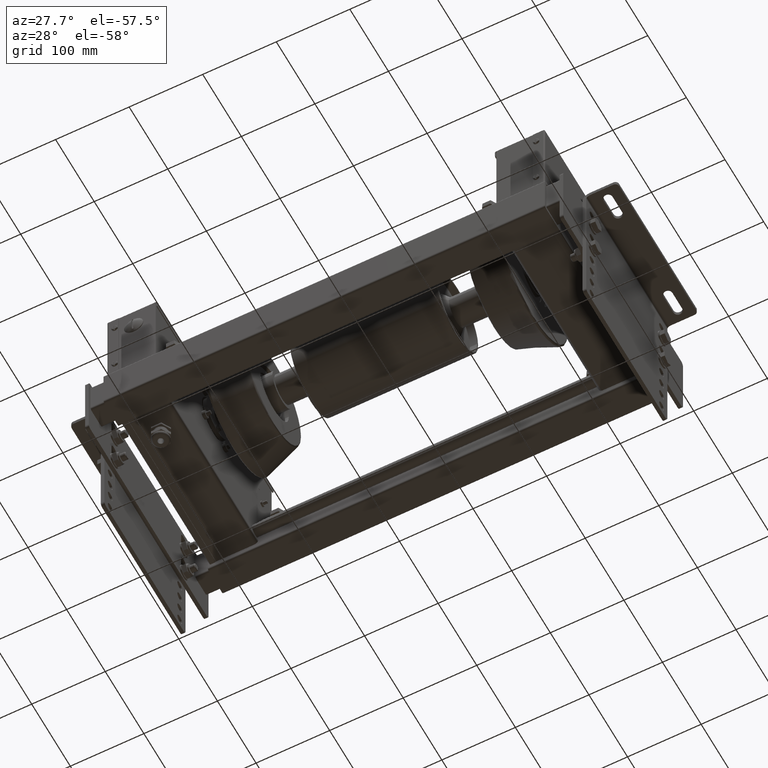
[diagram: clean part render]
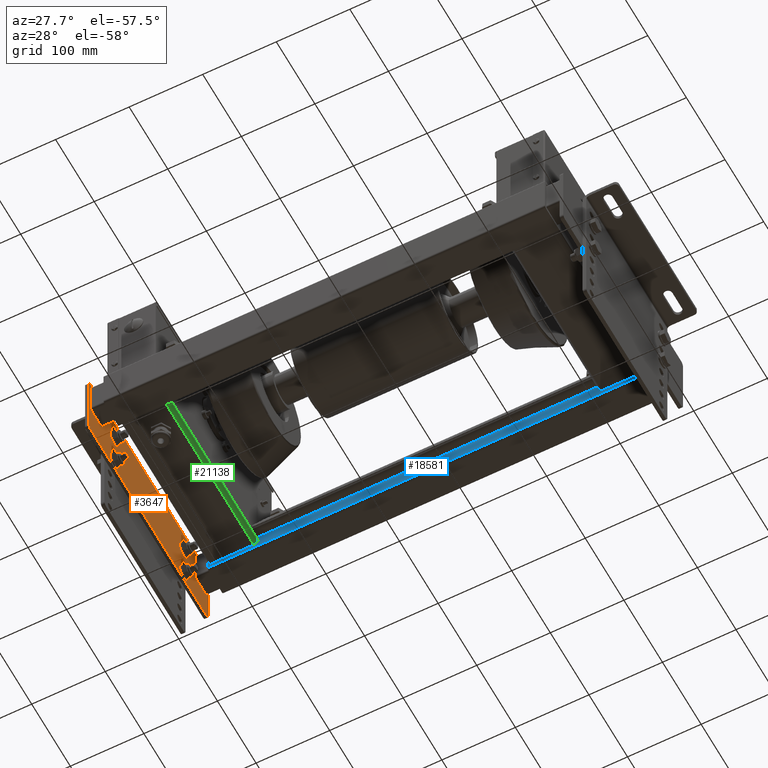
[diagram: same view with three faces highlighted in distinct colors, each labeled with its STEP entity id]
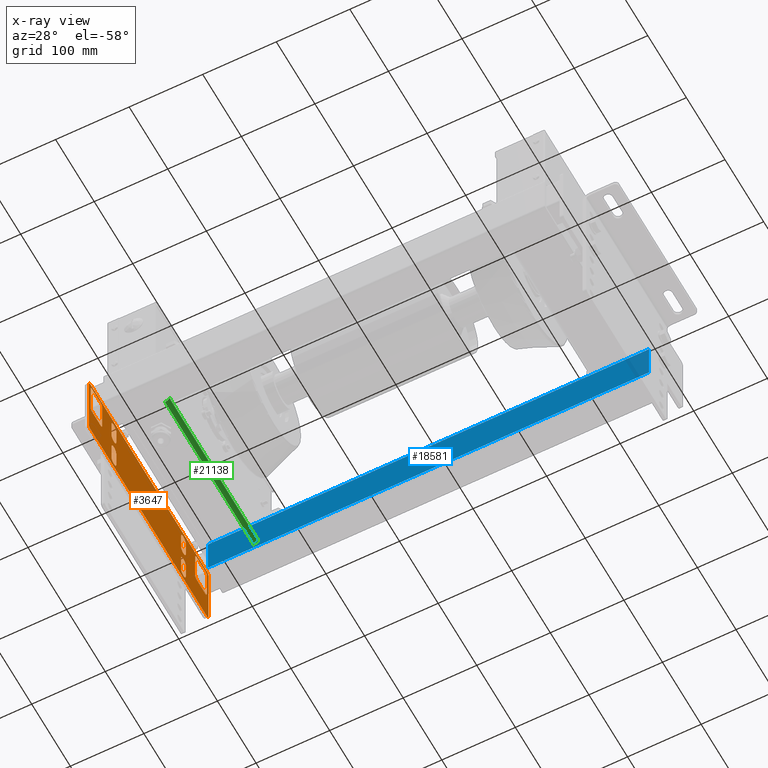
[diagram: x-ray of the same camera — body ghosted, the three highlighted faces saturated]
A machine part, auxiliary view with three faces highlighted in distinct colors.
The next image is the same camera in x-ray (body ghosted, the three faces saturated) — at least one of them is partly hidden behind the body in this view.
Their STEP definitions:

[orange] entity #3647 — the highlighted planar face has unit normal (-1, 0, 0).
#1688=CARTESIAN_POINT('',(155.0,45.0,-2.500000000000000));
#1689=VERTEX_POINT('',#1688);
#1696=CARTESIAN_POINT('',(150.0,49.999999999999915,-2.500000000000000));
#1697=VERTEX_POINT('',#1696);
#1698=CARTESIAN_POINT('',(150.0,45.0,-2.500000000000000));
#1699=DIRECTION('',(0.0,0.0,1.000000000000000));
#1700=DIRECTION('',(0.707106781186547,0.707106781186547,0.0));
#1701=AXIS2_PLACEMENT_3D('',#1698,#1699,#1700);
#1702=CIRCLE('',#1701,4.999999999999999);
#1703=EDGE_CURVE('',#1689,#1697,#1702,.T.);
#1728=CARTESIAN_POINT('',(155.0,-44.999999999999886,-2.500000000000000));
#1729=VERTEX_POINT('',#1728);
#1736=CARTESIAN_POINT('',(155.0,-44.999999999999886,-2.500000000000000));
#1737=DIRECTION('',(0.0,1.0,0.0));
#1738=VECTOR('',#1737,89.999999999999886);
#1739=LINE('',#1736,#1738);
#1740=EDGE_CURVE('',#1729,#1689,#1739,.T.);
#1954=CARTESIAN_POINT('',(150.0,-49.999999999999886,-2.500000000000000));
#1955=VERTEX_POINT('',#1954);
#1962=CARTESIAN_POINT('',(150.0,-44.999999999999886,-2.500000000000000));
#1963=DIRECTION('',(0.0,0.0,1.000000000000000));
#1964=DIRECTION('',(0.707106781186547,-0.707106781186547,0.0));
#1965=AXIS2_PLACEMENT_3D('',#1962,#1963,#1964);
#1966=CIRCLE('',#1965,4.999999999999999);
#1967=EDGE_CURVE('',#1955,#1729,#1966,.T.);
#1980=CARTESIAN_POINT('',(-150.0,-49.999999999999886,-2.500000000000000));
#1981=VERTEX_POINT('',#1980);
#1988=CARTESIAN_POINT('',(-150.0,-49.999999999999886,-2.500000000000000));
#1989=DIRECTION('',(1.0,0.0,0.0));
#1990=VECTOR('',#1989,300.0);
#1991=LINE('',#1988,#1990);
#1992=EDGE_CURVE('',#1981,#1955,#1991,.T.);
#2003=CARTESIAN_POINT('',(-150.000000000000060,49.999999999999858,-2.500000000000000));
#2004=VERTEX_POINT('',#2003);
#2011=CARTESIAN_POINT('',(-155.000000000000030,44.999999999999943,-2.500000000000000));
#2012=VERTEX_POINT('',#2011);
#2013=CARTESIAN_POINT('',(-150.000000000000060,44.999999999999943,-2.500000000000000));
#2014=DIRECTION('',(0.0,0.0,1.000000000000000));
#2015=DIRECTION('',(-0.707106781186547,0.707106781186547,0.0));
#2016=AXIS2_PLACEMENT_3D('',#2013,#2014,#2015);
#2017=CIRCLE('',#2016,4.999999999999999);
#2018=EDGE_CURVE('',#2004,#2012,#2017,.T.);
#2035=CARTESIAN_POINT('',(150.0,49.999999999999915,-2.500000000000000));
#2036=DIRECTION('',(-1.0,0.0,0.0));
#2037=VECTOR('',#2036,300.000000000000060);
#2038=LINE('',#2035,#2037);
#2039=EDGE_CURVE('',#1697,#2004,#2038,.T.);
#2052=CARTESIAN_POINT('',(-154.999999999999970,-44.999999999999886,-2.500000000000000));
#2053=VERTEX_POINT('',#2052);
#2060=CARTESIAN_POINT('',(-150.0,-44.999999999999886,-2.500000000000000));
#2061=DIRECTION('',(0.0,0.0,1.000000000000000));
#2062=DIRECTION('',(-0.707106781186547,-0.707106781186547,0.0));
#2063=AXIS2_PLACEMENT_3D('',#2060,#2061,#2062);
#2064=CIRCLE('',#2063,4.999999999999999);
#2065=EDGE_CURVE('',#2053,#1981,#2064,.T.);
#2086=CARTESIAN_POINT('',(-150.500000000000110,-1.0,-2.500000000000000));
#2087=VERTEX_POINT('',#2086);
#2094=CARTESIAN_POINT('',(-150.500000000000110,41.0,-2.500000000000000));
#2095=VERTEX_POINT('',#2094);
#2096=CARTESIAN_POINT('',(-150.500000000000110,41.0,-2.500000000000000));
#2097=DIRECTION('',(0.0,-1.0,0.0));
#2098=VECTOR('',#2097,42.0);
#2099=LINE('',#2096,#2098);
#2100=EDGE_CURVE('',#2095,#2087,#2099,.T.);
#2125=CARTESIAN_POINT('',(-146.500000000000060,-5.0,-2.500000000000000));
#2126=VERTEX_POINT('',#2125);
#2133=CARTESIAN_POINT('',(-146.500000000000060,-1.0,-2.500000000000000));
#2134=DIRECTION('',(0.0,0.0,1.0));
#2135=DIRECTION('',(1.0,0.0,0.0));
#2136=AXIS2_PLACEMENT_3D('',#2133,#2134,#2135);
#2137=CIRCLE('',#2136,4.0);
#2138=EDGE_CURVE('',#2087,#2126,#2137,.T.);
#2157=CARTESIAN_POINT('',(-124.500000000000060,-5.0,-2.500000000000000));
#2158=VERTEX_POINT('',#2157);
#2165=CARTESIAN_POINT('',(-146.500000000000060,-5.0,-2.500000000000000));
#2166=DIRECTION('',(1.0,0.0,0.0));
#2167=VECTOR('',#2166,22.0);
#2168=LINE('',#2165,#2167);
#2169=EDGE_CURVE('',#2126,#2158,#2168,.T.);
#2189=CARTESIAN_POINT('',(-120.500000000000110,-1.0,-2.500000000000000));
#2190=VERTEX_POINT('',#2189);
#2197=CARTESIAN_POINT('',(-124.500000000000060,-1.0,-2.500000000000000));
#2198=DIRECTION('',(0.0,0.0,1.0));
#2199=DIRECTION('',(1.0,0.0,0.0));
#2200=AXIS2_PLACEMENT_3D('',#2197,#2198,#2199);
#2201=CIRCLE('',#2200,4.0);
#2202=EDGE_CURVE('',#2158,#2190,#2201,.T.);
#2221=CARTESIAN_POINT('',(-120.500000000000110,41.0,-2.500000000000000));
#2222=VERTEX_POINT('',#2221);
#2229=CARTESIAN_POINT('',(-120.500000000000110,-1.0,-2.500000000000000));
#2230=DIRECTION('',(0.0,1.0,0.0));
#2231=VECTOR('',#2230,42.0);
#2232=LINE('',#2229,#2231);
#2233=EDGE_CURVE('',#2190,#2222,#2232,.T.);
#2253=CARTESIAN_POINT('',(-124.500000000000060,45.0,-2.500000000000000));
#2254=VERTEX_POINT('',#2253);
#2261=CARTESIAN_POINT('',(-124.500000000000060,41.0,-2.500000000000000));
#2262=DIRECTION('',(0.0,0.0,1.0));
#2263=DIRECTION('',(1.0,0.0,0.0));
#2264=AXIS2_PLACEMENT_3D('',#2261,#2262,#2263);
#2265=CIRCLE('',#2264,4.0);
#2266=EDGE_CURVE('',#2222,#2254,#2265,.T.);
#2285=CARTESIAN_POINT('',(-146.500000000000060,45.0,-2.500000000000000));
#2286=VERTEX_POINT('',#2285);
#2293=CARTESIAN_POINT('',(-124.500000000000060,45.0,-2.500000000000000));
#2294=DIRECTION('',(-1.0,0.0,0.0));
#2295=VECTOR('',#2294,22.0);
#2296=LINE('',#2293,#2295);
#2297=EDGE_CURVE('',#2254,#2286,#2296,.T.);
#2316=CARTESIAN_POINT('',(-146.500000000000060,41.0,-2.500000000000000));
#2317=DIRECTION('',(0.0,0.0,1.0));
#2318=DIRECTION('',(1.0,0.0,0.0));
#2319=AXIS2_PLACEMENT_3D('',#2316,#2317,#2318);
#2320=CIRCLE('',#2319,4.0);
#2321=EDGE_CURVE('',#2286,#2095,#2320,.T.);
#2624=CARTESIAN_POINT('',(120.500000000000110,-1.0,-2.500000000000000));
#2625=VERTEX_POINT('',#2624);
#2632=CARTESIAN_POINT('',(120.500000000000110,41.0,-2.500000000000000));
#2633=VERTEX_POINT('',#2632);
#2634=CARTESIAN_POINT('',(120.500000000000110,41.0,-2.500000000000000));
#2635=DIRECTION('',(0.0,-1.0,0.0));
#2636=VECTOR('',#2635,42.0);
#2637=LINE('',#2634,#2636);
#2638=EDGE_CURVE('',#2633,#2625,#2637,.T.);
#2663=CARTESIAN_POINT('',(124.500000000000000,-5.0,-2.500000000000000));
#2664=VERTEX_POINT('',#2663);
#2671=CARTESIAN_POINT('',(124.500000000000000,-1.0,-2.500000000000000));
#2672=DIRECTION('',(0.0,0.0,1.0));
#2673=DIRECTION('',(1.0,0.0,0.0));
#2674=AXIS2_PLACEMENT_3D('',#2671,#2672,#2673);
#2675=CIRCLE('',#2674,4.0);
#2676=EDGE_CURVE('',#2625,#2664,#2675,.T.);
#2695=CARTESIAN_POINT('',(146.500000000000000,-5.000000000000114,-2.500000000000000));
#2696=VERTEX_POINT('',#2695);
#2703=CARTESIAN_POINT('',(124.500000000000000,-5.0,-2.500000000000000));
#2704=DIRECTION('',(1.0,0.0,0.0));
#2705=VECTOR('',#2704,22.0);
#2706=LINE('',#2703,#2705);
#2707=EDGE_CURVE('',#2664,#2696,#2706,.T.);
#2727=CARTESIAN_POINT('',(150.500000000000110,-1.000000000000057,-2.500000000000000));
#2728=VERTEX_POINT('',#2727);
#2735=CARTESIAN_POINT('',(146.500000000000000,-1.000000000000057,-2.500000000000000));
#2736=DIRECTION('',(0.0,0.0,1.0));
#2737=DIRECTION('',(1.0,0.0,0.0));
#2738=AXIS2_PLACEMENT_3D('',#2735,#2736,#2737);
#2739=CIRCLE('',#2738,4.0);
#2740=EDGE_CURVE('',#2696,#2728,#2739,.T.);
#2759=CARTESIAN_POINT('',(150.500000000000110,41.0,-2.500000000000000));
#2760=VERTEX_POINT('',#2759);
#2767=CARTESIAN_POINT('',(150.500000000000110,-1.000000000000057,-2.500000000000000));
#2768=DIRECTION('',(0.0,1.0,0.0));
#2769=VECTOR('',#2768,42.000000000000057);
#2770=LINE('',#2767,#2769);
#2771=EDGE_CURVE('',#2728,#2760,#2770,.T.);
#2791=CARTESIAN_POINT('',(146.500000000000000,45.0,-2.500000000000000));
#2792=VERTEX_POINT('',#2791);
#2799=CARTESIAN_POINT('',(146.500000000000000,41.0,-2.500000000000000));
#2800=DIRECTION('',(0.0,0.0,1.0));
#2801=DIRECTION('',(1.0,0.0,0.0));
#2802=AXIS2_PLACEMENT_3D('',#2799,#2800,#2801);
#2803=CIRCLE('',#2802,4.0);
#2804=EDGE_CURVE('',#2760,#2792,#2803,.T.);
#2823=CARTESIAN_POINT('',(124.500000000000000,45.0,-2.500000000000000));
#2824=VERTEX_POINT('',#2823);
#2831=CARTESIAN_POINT('',(146.500000000000000,45.0,-2.500000000000000));
#2832=DIRECTION('',(-1.0,0.0,0.0));
#2833=VECTOR('',#2832,22.0);
#2834=LINE('',#2831,#2833);
#2835=EDGE_CURVE('',#2792,#2824,#2834,.T.);
#2854=CARTESIAN_POINT('',(124.500000000000000,41.0,-2.500000000000000));
#2855=DIRECTION('',(0.0,0.0,1.0));
#2856=DIRECTION('',(1.0,0.0,0.0));
#2857=AXIS2_PLACEMENT_3D('',#2854,#2855,#2856);
#2858=CIRCLE('',#2857,4.0);
#2859=EDGE_CURVE('',#2824,#2633,#2858,.T.);
#3185=CARTESIAN_POINT('',(-155.000000000000030,44.999999999999943,-2.500000000000000));
#3186=DIRECTION('',(0.0,-1.0,0.0));
#3187=VECTOR('',#3186,89.999999999999829);
#3188=LINE('',#3185,#3187);
#3189=EDGE_CURVE('',#2012,#2053,#3188,.T.);
#3202=CARTESIAN_POINT('',(-84.0,-12.500000000000057,-2.500000000000000));
#3203=VERTEX_POINT('',#3202);
#3210=CARTESIAN_POINT('',(-84.0,-37.500000000000000,-2.500000000000000));
#3211=VERTEX_POINT('',#3210);
#3212=CARTESIAN_POINT('',(-84.0,-12.500000000000057,-2.500000000000000));
#3213=DIRECTION('',(0.0,-1.0,0.0));
#3214=VECTOR('',#3213,24.999999999999943);
#3215=LINE('',#3212,#3214);
#3216=EDGE_CURVE('',#3203,#3211,#3215,.T.);
#3233=CARTESIAN_POINT('',(-96.0,-12.500000000000057,-2.500000000000000));
#3234=VERTEX_POINT('',#3233);
#3241=CARTESIAN_POINT('',(-90.0,-12.499999999999943,-2.500000000000000));
#3242=DIRECTION('',(0.0,0.0,-1.0));
#3243=DIRECTION('',(1.0,0.0,0.0));
#3244=AXIS2_PLACEMENT_3D('',#3241,#3242,#3243);
#3245=CIRCLE('',#3244,6.0);
#3246=EDGE_CURVE('',#3234,#3203,#3245,.T.);
#3258=CARTESIAN_POINT('',(-96.0,-37.500000000000000,-2.500000000000000));
#3259=VERTEX_POINT('',#3258);
#3266=CARTESIAN_POINT('',(-96.0,-37.500000000000000,-2.500000000000000));
#3267=DIRECTION('',(0.0,1.0,0.0));
#3268=VECTOR('',#3267,24.999999999999943);
#3269=LINE('',#3266,#3268);
#3270=EDGE_CURVE('',#3259,#3234,#3269,.T.);
#3283=CARTESIAN_POINT('',(-90.0,-37.500000000000057,-2.500000000000000));
#3284=DIRECTION('',(0.0,0.0,-1.0));
#3285=DIRECTION('',(1.0,0.0,0.0));
#3286=AXIS2_PLACEMENT_3D('',#3283,#3284,#3285);
#3287=CIRCLE('',#3286,6.0);
#3288=EDGE_CURVE('',#3211,#3259,#3287,.T.);
#3300=CARTESIAN_POINT('',(96.000000000000114,-12.499999999999886,-2.500000000000000));
#3301=VERTEX_POINT('',#3300);
#3308=CARTESIAN_POINT('',(96.000000000000114,-37.500000000000000,-2.500000000000000));
#3309=VERTEX_POINT('',#3308);
#3310=CARTESIAN_POINT('',(96.000000000000114,-12.499999999999886,-2.500000000000000));
#3311=DIRECTION('',(0.0,-1.0,0.0));
#3312=VECTOR('',#3311,25.000000000000114);
#3313=LINE('',#3310,#3312);
#3314=EDGE_CURVE('',#3301,#3309,#3313,.T.);
#3331=CARTESIAN_POINT('',(84.0,-12.499999999999886,-2.500000000000000));
#3332=VERTEX_POINT('',#3331);
#3339=CARTESIAN_POINT('',(90.0,-12.499999999999886,-2.500000000000000));
#3340=DIRECTION('',(0.0,0.0,-1.0));
#3341=DIRECTION('',(1.0,0.0,0.0));
#3342=AXIS2_PLACEMENT_3D('',#3339,#3340,#3341);
#3343=CIRCLE('',#3342,6.0);
#3344=EDGE_CURVE('',#3332,#3301,#3343,.T.);
#3356=CARTESIAN_POINT('',(83.999999999999886,-37.500000000000000,-2.500000000000000));
#3357=VERTEX_POINT('',#3356);
#3364=CARTESIAN_POINT('',(83.999999999999886,-37.500000000000000,-2.500000000000000));
#3365=DIRECTION('',(0.0,1.0,0.0));
#3366=VECTOR('',#3365,25.000000000000114);
#3367=LINE('',#3364,#3366);
#3368=EDGE_CURVE('',#3357,#3332,#3367,.T.);
#3381=CARTESIAN_POINT('',(90.0,-37.500000000000000,-2.500000000000000));
#3382=DIRECTION('',(0.0,0.0,-1.0));
#3383=DIRECTION('',(1.0,0.0,0.0));
#3384=AXIS2_PLACEMENT_3D('',#3381,#3382,#3383);
#3385=CIRCLE('',#3384,6.0);
#3386=EDGE_CURVE('',#3309,#3357,#3385,.T.);
#3398=CARTESIAN_POINT('',(96.000000000000114,37.499999999999943,-2.500000000000000));
#3399=VERTEX_POINT('',#3398);
#3406=CARTESIAN_POINT('',(96.000000000000114,12.500000000000000,-2.500000000000000));
#3407=VERTEX_POINT('',#3406);
#3408=CARTESIAN_POINT('',(96.000000000000114,37.499999999999943,-2.500000000000000));
#3409=DIRECTION('',(0.0,-1.0,0.0));
#3410=VECTOR('',#3409,24.999999999999943);
#3411=LINE('',#3408,#3410);
#3412=EDGE_CURVE('',#3399,#3407,#3411,.T.);
#3429=CARTESIAN_POINT('',(84.000000000000114,37.499999999999943,-2.500000000000000));
#3430=VERTEX_POINT('',#3429);
#3437=CARTESIAN_POINT('',(89.999999999999773,37.500000000000057,-2.500000000000000));
#3438=DIRECTION('',(0.0,0.0,-1.0));
#3439=DIRECTION('',(1.0,0.0,0.0));
#3440=AXIS2_PLACEMENT_3D('',#3437,#3438,#3439);
#3441=CIRCLE('',#3440,6.0);
#3442=EDGE_CURVE('',#3430,#3399,#3441,.T.);
#3454=CARTESIAN_POINT('',(84.000000000000114,12.500000000000000,-2.500000000000000));
#3455=VERTEX_POINT('',#3454);
#3462=CARTESIAN_POINT('',(84.000000000000114,12.500000000000000,-2.500000000000000));
#3463=DIRECTION('',(0.0,1.0,0.0));
#3464=VECTOR('',#3463,24.999999999999943);
#3465=LINE('',#3462,#3464);
#3466=EDGE_CURVE('',#3455,#3430,#3465,.T.);
#3479=CARTESIAN_POINT('',(89.999999999999773,12.499999999999943,-2.500000000000000));
#3480=DIRECTION('',(0.0,0.0,-1.0));
#3481=DIRECTION('',(1.0,0.0,0.0));
#3482=AXIS2_PLACEMENT_3D('',#3479,#3480,#3481);
#3483=CIRCLE('',#3482,6.0);
#3484=EDGE_CURVE('',#3407,#3455,#3483,.T.);
#3496=CARTESIAN_POINT('',(-84.0,37.500000000000057,-2.500000000000000));
#3497=VERTEX_POINT('',#3496);
#3504=CARTESIAN_POINT('',(-84.0,12.499999999999943,-2.500000000000000));
#3505=VERTEX_POINT('',#3504);
#3506=CARTESIAN_POINT('',(-84.0,37.500000000000057,-2.500000000000000));
#3507=DIRECTION('',(0.0,-1.0,0.0));
#3508=VECTOR('',#3507,25.000000000000114);
#3509=LINE('',#3506,#3508);
#3510=EDGE_CURVE('',#3497,#3505,#3509,.T.);
#3527=CARTESIAN_POINT('',(-95.999999999999886,37.500000000000057,-2.500000000000000));
#3528=VERTEX_POINT('',#3527);
#3535=CARTESIAN_POINT('',(-90.0,37.500000000000057,-2.500000000000000));
#3536=DIRECTION('',(0.0,0.0,-1.0));
#3537=DIRECTION('',(1.0,0.0,0.0));
#3538=AXIS2_PLACEMENT_3D('',#3535,#3536,#3537);
#3539=CIRCLE('',#3538,6.0);
#3540=EDGE_CURVE('',#3528,#3497,#3539,.T.);
#3552=CARTESIAN_POINT('',(-96.0,12.499999999999943,-2.500000000000000));
#3553=VERTEX_POINT('',#3552);
#3560=CARTESIAN_POINT('',(-96.0,12.499999999999943,-2.500000000000000));
#3561=DIRECTION('',(0.0,1.0,0.0));
#3562=VECTOR('',#3561,25.000000000000114);
#3563=LINE('',#3560,#3562);
#3564=EDGE_CURVE('',#3553,#3528,#3563,.T.);
#3577=CARTESIAN_POINT('',(-90.0,12.499999999999943,-2.500000000000000));
#3578=DIRECTION('',(0.0,0.0,-1.0));
#3579=DIRECTION('',(1.0,0.0,0.0));
#3580=AXIS2_PLACEMENT_3D('',#3577,#3578,#3579);
#3581=CIRCLE('',#3580,6.0);
#3582=EDGE_CURVE('',#3505,#3553,#3581,.T.);
#3588=CARTESIAN_POINT('',(-2.273737E-013,0.0,-2.500000000000000));
#3589=DIRECTION('',(0.0,0.0,1.0));
#3590=DIRECTION('',(1.0,0.0,0.0));
#3591=AXIS2_PLACEMENT_3D('',#3588,#3589,#3590);
#3592=PLANE('',#3591);
#3593=ORIENTED_EDGE('',*,*,#1703,.F.);
#3594=ORIENTED_EDGE('',*,*,#1740,.F.);
#3595=ORIENTED_EDGE('',*,*,#1967,.F.);
#3596=ORIENTED_EDGE('',*,*,#1992,.F.);
#3597=ORIENTED_EDGE('',*,*,#2065,.F.);
#3598=ORIENTED_EDGE('',*,*,#3189,.F.);
#3599=ORIENTED_EDGE('',*,*,#2018,.F.);
#3600=ORIENTED_EDGE('',*,*,#2039,.F.);
#3601=EDGE_LOOP('',(#3593,#3594,#3595,#3596,#3597,#3598,#3599,#3600));
#3602=FACE_OUTER_BOUND('',#3601,.T.);
#3603=ORIENTED_EDGE('',*,*,#2100,.T.);
#3604=ORIENTED_EDGE('',*,*,#2138,.T.);
#3605=ORIENTED_EDGE('',*,*,#2169,.T.);
#3606=ORIENTED_EDGE('',*,*,#2202,.T.);
#3607=ORIENTED_EDGE('',*,*,#2233,.T.);
#3608=ORIENTED_EDGE('',*,*,#2266,.T.);
#3609=ORIENTED_EDGE('',*,*,#2297,.T.);
#3610=ORIENTED_EDGE('',*,*,#2321,.T.);
#3611=EDGE_LOOP('',(#3603,#3604,#3605,#3606,#3607,#3608,#3609,#3610));
#3612=FACE_BOUND('',#3611,.T.);
#3613=ORIENTED_EDGE('',*,*,#2638,.T.);
#3614=ORIENTED_EDGE('',*,*,#2676,.T.);
#3615=ORIENTED_EDGE('',*,*,#2707,.T.);
#3616=ORIENTED_EDGE('',*,*,#2740,.T.);
#3617=ORIENTED_EDGE('',*,*,#2771,.T.);
#3618=ORIENTED_EDGE('',*,*,#2804,.T.);
#3619=ORIENTED_EDGE('',*,*,#2835,.T.);
#3620=ORIENTED_EDGE('',*,*,#2859,.T.);
#3621=EDGE_LOOP('',(#3613,#3614,#3615,#3616,#3617,#3618,#3619,#3620));
#3622=FACE_BOUND('',#3621,.T.);
#3623=ORIENTED_EDGE('',*,*,#3582,.F.);
#3624=ORIENTED_EDGE('',*,*,#3510,.F.);
#3625=ORIENTED_EDGE('',*,*,#3540,.F.);
#3626=ORIENTED_EDGE('',*,*,#3564,.F.);
#3627=EDGE_LOOP('',(#3623,#3624,#3625,#3626));
#3628=FACE_BOUND('',#3627,.T.);
#3629=ORIENTED_EDGE('',*,*,#3484,.F.);
#3630=ORIENTED_EDGE('',*,*,#3412,.F.);
#3631=ORIENTED_EDGE('',*,*,#3442,.F.);
#3632=ORIENTED_EDGE('',*,*,#3466,.F.);
#3633=EDGE_LOOP('',(#3629,#3630,#3631,#3632));
#3634=FACE_BOUND('',#3633,.T.);
#3635=ORIENTED_EDGE('',*,*,#3386,.F.);
#3636=ORIENTED_EDGE('',*,*,#3314,.F.);
#3637=ORIENTED_EDGE('',*,*,#3344,.F.);
#3638=ORIENTED_EDGE('',*,*,#3368,.F.);
#3639=EDGE_LOOP('',(#3635,#3636,#3637,#3638));
#3640=FACE_BOUND('',#3639,.T.);
#3641=ORIENTED_EDGE('',*,*,#3288,.F.);
#3642=ORIENTED_EDGE('',*,*,#3216,.F.);
#3643=ORIENTED_EDGE('',*,*,#3246,.F.);
#3644=ORIENTED_EDGE('',*,*,#3270,.F.);
#3645=EDGE_LOOP('',(#3641,#3642,#3643,#3644));
#3646=FACE_BOUND('',#3645,.T.);
#3647=ADVANCED_FACE('',(#3602,#3612,#3622,#3628,#3634,#3640,#3646),#3592,.F.);

[blue] entity #18581 — the highlighted planar face has unit normal (0, -1, 0).
#18323=CARTESIAN_POINT('',(-20.0,26.0,195.0));
#18324=VERTEX_POINT('',#18323);
#18342=CARTESIAN_POINT('',(-20.0,26.0,-405.0));
#18343=VERTEX_POINT('',#18342);
#18351=CARTESIAN_POINT('',(-20.0,26.0,-405.0));
#18352=DIRECTION('',(0.0,0.0,1.0));
#18353=VECTOR('',#18352,600.0);
#18354=LINE('',#18351,#18353);
#18355=EDGE_CURVE('',#18343,#18324,#18354,.T.);
#18532=CARTESIAN_POINT('',(-20.0,-25.999999999999886,195.0));
#18533=VERTEX_POINT('',#18532);
#18541=CARTESIAN_POINT('',(-20.0,-25.999999999999886,-405.0));
#18542=VERTEX_POINT('',#18541);
#18543=CARTESIAN_POINT('',(-20.0,-25.999999999999886,-405.0));
#18544=DIRECTION('',(0.0,0.0,1.0));
#18545=VECTOR('',#18544,600.0);
#18546=LINE('',#18543,#18545);
#18547=EDGE_CURVE('',#18542,#18533,#18546,.T.);
#18560=CARTESIAN_POINT('',(-20.0,-25.999999999999886,-405.0));
#18561=DIRECTION('',(-1.0,0.0,0.0));
#18562=DIRECTION('',(0.0,0.0,1.0));
#18563=AXIS2_PLACEMENT_3D('',#18560,#18561,#18562);
#18564=PLANE('',#18563);
#18565=CARTESIAN_POINT('',(-20.0,-25.999999999999886,195.0));
#18566=DIRECTION('',(0.0,1.0,0.0));
#18567=VECTOR('',#18566,51.999999999999886);
#18568=LINE('',#18565,#18567);
#18569=EDGE_CURVE('',#18533,#18324,#18568,.T.);
#18570=ORIENTED_EDGE('',*,*,#18569,.T.);
#18571=ORIENTED_EDGE('',*,*,#18355,.F.);
#18572=CARTESIAN_POINT('',(-20.0,-25.999999999999886,-405.0));
#18573=DIRECTION('',(0.0,1.0,0.0));
#18574=VECTOR('',#18573,51.999999999999886);
#18575=LINE('',#18572,#18574);
#18576=EDGE_CURVE('',#18542,#18343,#18575,.T.);
#18577=ORIENTED_EDGE('',*,*,#18576,.F.);
#18578=ORIENTED_EDGE('',*,*,#18547,.T.);
#18579=EDGE_LOOP('',(#18570,#18571,#18577,#18578));
#18580=FACE_OUTER_BOUND('',#18579,.T.);
#18581=ADVANCED_FACE('',(#18580),#18564,.T.);

[green] entity #21138 — the highlighted cylindrical surface (edge-blend (fillet) strip) has radius 6 mm, axis along (-0, 1, -0).
#21097=CARTESIAN_POINT('',(56.612863465363738,-78.999999999999773,4.500000000000000));
#21098=DIRECTION('',(-1.0,0.0,-1.007452E-081));
#21099=DIRECTION('',(0.0,-0.707106781186547,-0.707106781186547));
#21100=AXIS2_PLACEMENT_3D('',#21097,#21098,#21099);
#21101=CYLINDRICAL_SURFACE('',#21100,6.000000000000001);
#21102=CARTESIAN_POINT('',(-115.000000000000910,-84.999999999999773,4.500000000000000));
#21103=VERTEX_POINT('',#21102);
#21104=CARTESIAN_POINT('',(-115.000000000001360,-78.999999999999773,-1.500000000000000));
#21105=VERTEX_POINT('',#21104);
#21106=CARTESIAN_POINT('',(-115.000000000000910,-78.999999999999773,4.500000000000000));
#21107=DIRECTION('',(1.000000000000000,0.0,0.0));
#21108=DIRECTION('',(0.0,-0.707106781186547,-0.707106781186547));
#21109=AXIS2_PLACEMENT_3D('',#21106,#21107,#21108);
#21110=CIRCLE('',#21109,6.0);
#21111=EDGE_CURVE('',#21103,#21105,#21110,.T.);
#21112=ORIENTED_EDGE('',*,*,#21111,.T.);
#21113=CARTESIAN_POINT('',(115.0,-78.999999999999773,-1.500000000000000));
#21114=VERTEX_POINT('',#21113);
#21115=CARTESIAN_POINT('',(-115.000000000001360,-78.999999999999773,-1.500000000000000));
#21116=DIRECTION('',(1.0,0.0,0.0));
#21117=VECTOR('',#21116,230.000000000001360);
#21118=LINE('',#21115,#21117);
#21119=EDGE_CURVE('',#21105,#21114,#21118,.T.);
#21120=ORIENTED_EDGE('',*,*,#21119,.T.);
#21121=CARTESIAN_POINT('',(114.999999999999090,-84.999999999999773,4.500000000000000));
#21122=VERTEX_POINT('',#21121);
#21123=CARTESIAN_POINT('',(114.999999999999090,-78.999999999999773,4.500000000000000));
#21124=DIRECTION('',(-1.000000000000000,0.0,0.0));
#21125=DIRECTION('',(0.0,-0.707106781186547,-0.707106781186547));
#21126=AXIS2_PLACEMENT_3D('',#21123,#21124,#21125);
#21127=CIRCLE('',#21126,6.0);
#21128=EDGE_CURVE('',#21114,#21122,#21127,.T.);
#21129=ORIENTED_EDGE('',*,*,#21128,.T.);
#21130=CARTESIAN_POINT('',(114.999999999999090,-84.999999999999773,4.500000000000000));
#21131=DIRECTION('',(-1.0,0.0,0.0));
#21132=VECTOR('',#21131,230.0);
#21133=LINE('',#21130,#21132);
#21134=EDGE_CURVE('',#21122,#21103,#21133,.T.);
#21135=ORIENTED_EDGE('',*,*,#21134,.T.);
#21136=EDGE_LOOP('',(#21112,#21120,#21129,#21135));
#21137=FACE_OUTER_BOUND('',#21136,.T.);
#21138=ADVANCED_FACE('',(#21137),#21101,.T.);